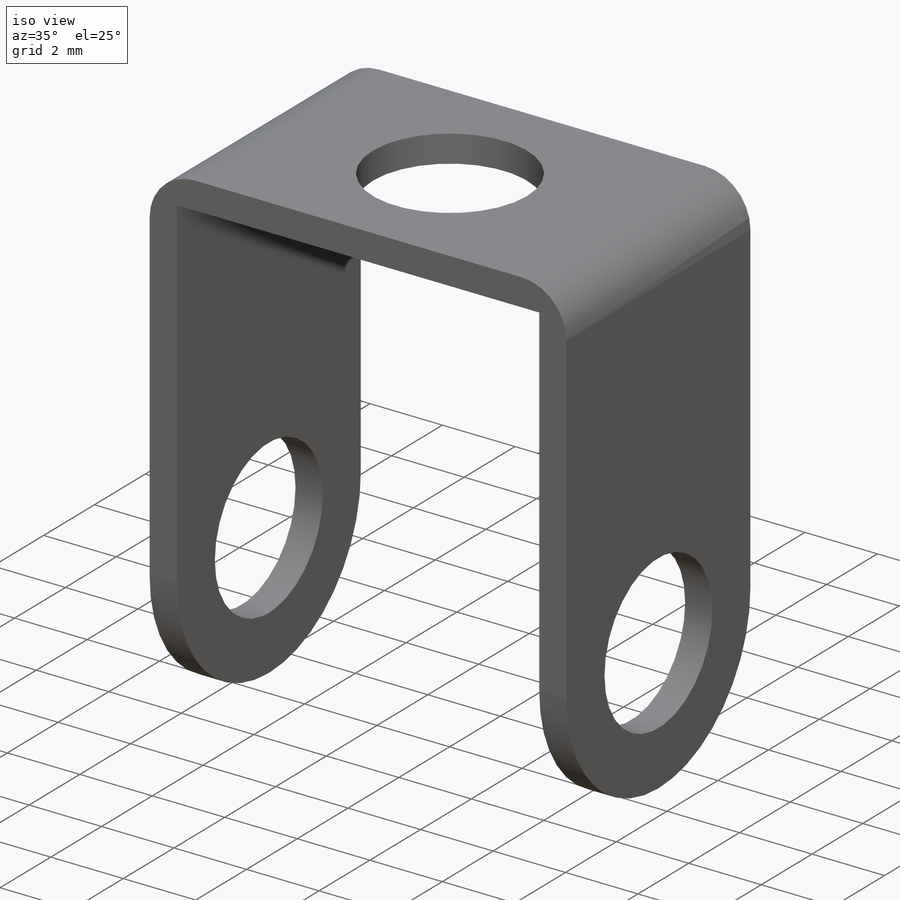
[diagram: iso view]
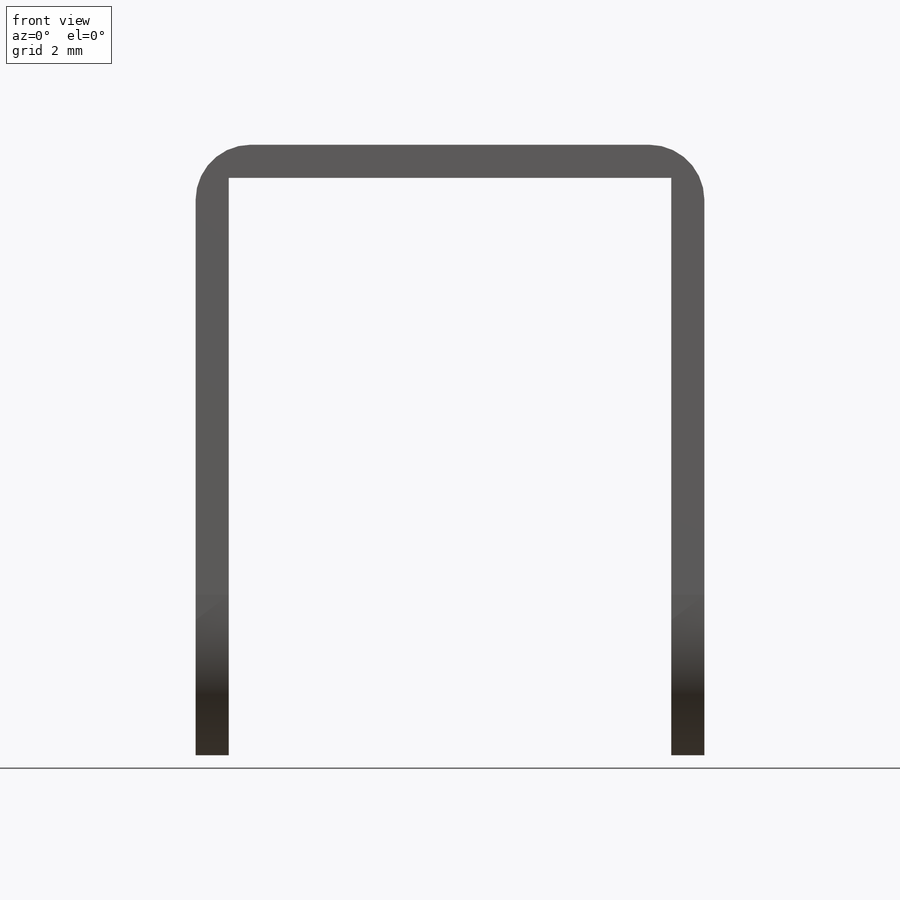
[diagram: front view]
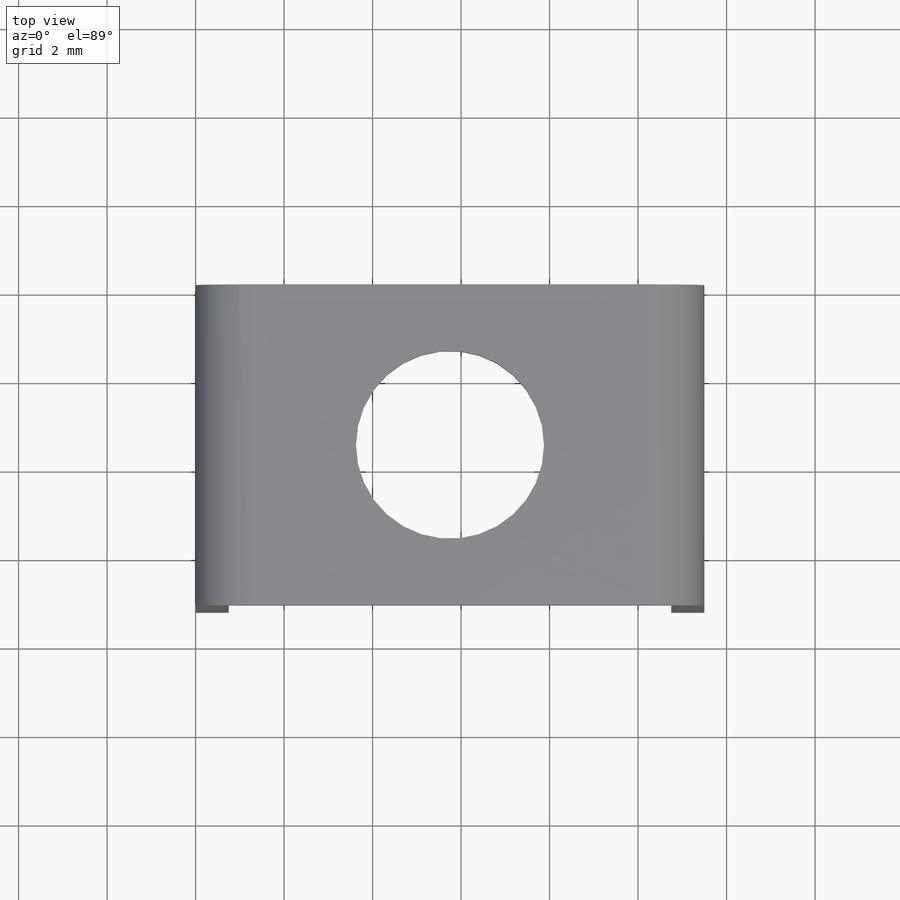
[diagram: top view]
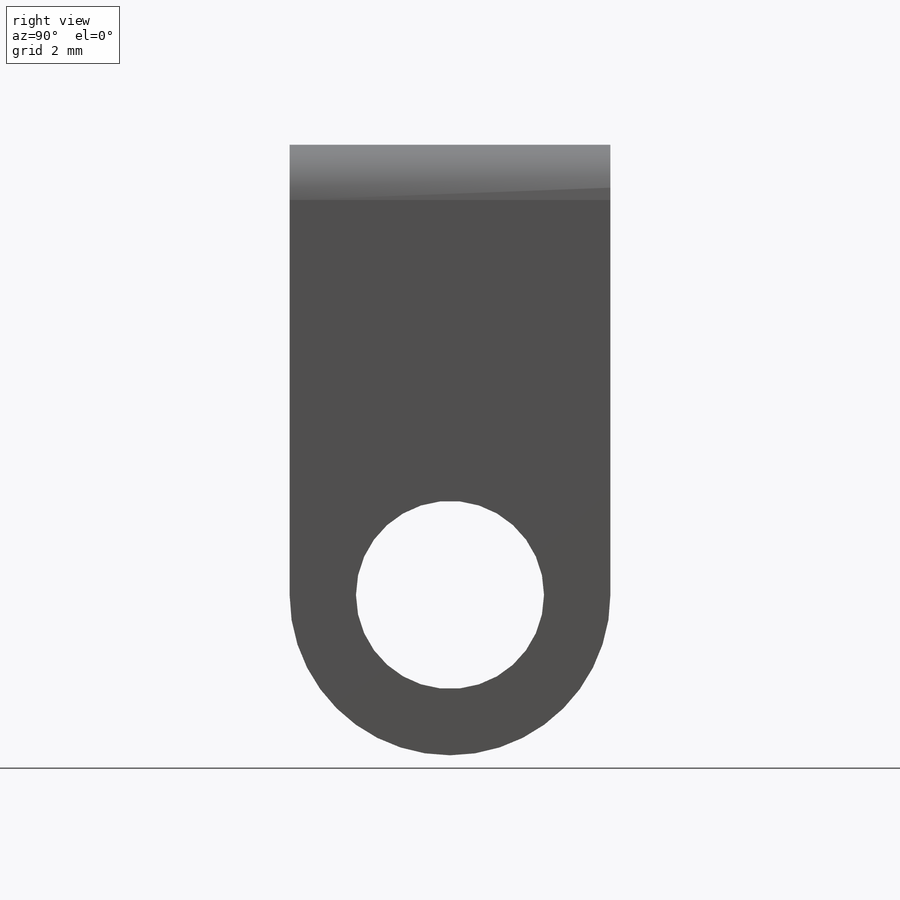
[diagram: right view]
SOLIDWORKS PART (.sldprt)
format: sldprt  version: not decoded by parser v0  size: 259,072 bytes
history: native  units: mm
features: sketch x5, cut_extrude x4, material x1, extrude x1 (+16 scaffold rows collapsed)
feature tree (27):
  scaffold x16  (default folders/planes/origin — collapsed)
  material  "Material <not specified>"
  sketch  "Sketch1"  dims[D4=1.25mm D1=11.5mm D2=13.8mm D3=0.75mm]
  extrude  "Boss-Extrude1"  Depth=7.25mm
  sketch  "Sketch2"  dims[D2=4.25mm D1=3.625mm]
  cut_extrude  "Cut-Extrude1"  Depth=100mm
  cut_extrude  "Cut-Extrude2"  [1 undecoded]
  sketch  "Sketch2<3>"  dims[D1=100.0mm]
  cut_extrude  "Cut-Extrude3"  [1 undecoded]
  sketch  "Sketch2<4>"  dims[D1=100.0mm]
  sketch  "Sketch6"  dims[D1=4.25mm]
  cut_extrude  "Cut-Extrude4"  Depth=100mm
decode coverage: 8 of 10 modeling features carry decoded parameters
note: 2 parameter values undecoded
note: suppression state not decoded; provenance and decode notes live in map.json
